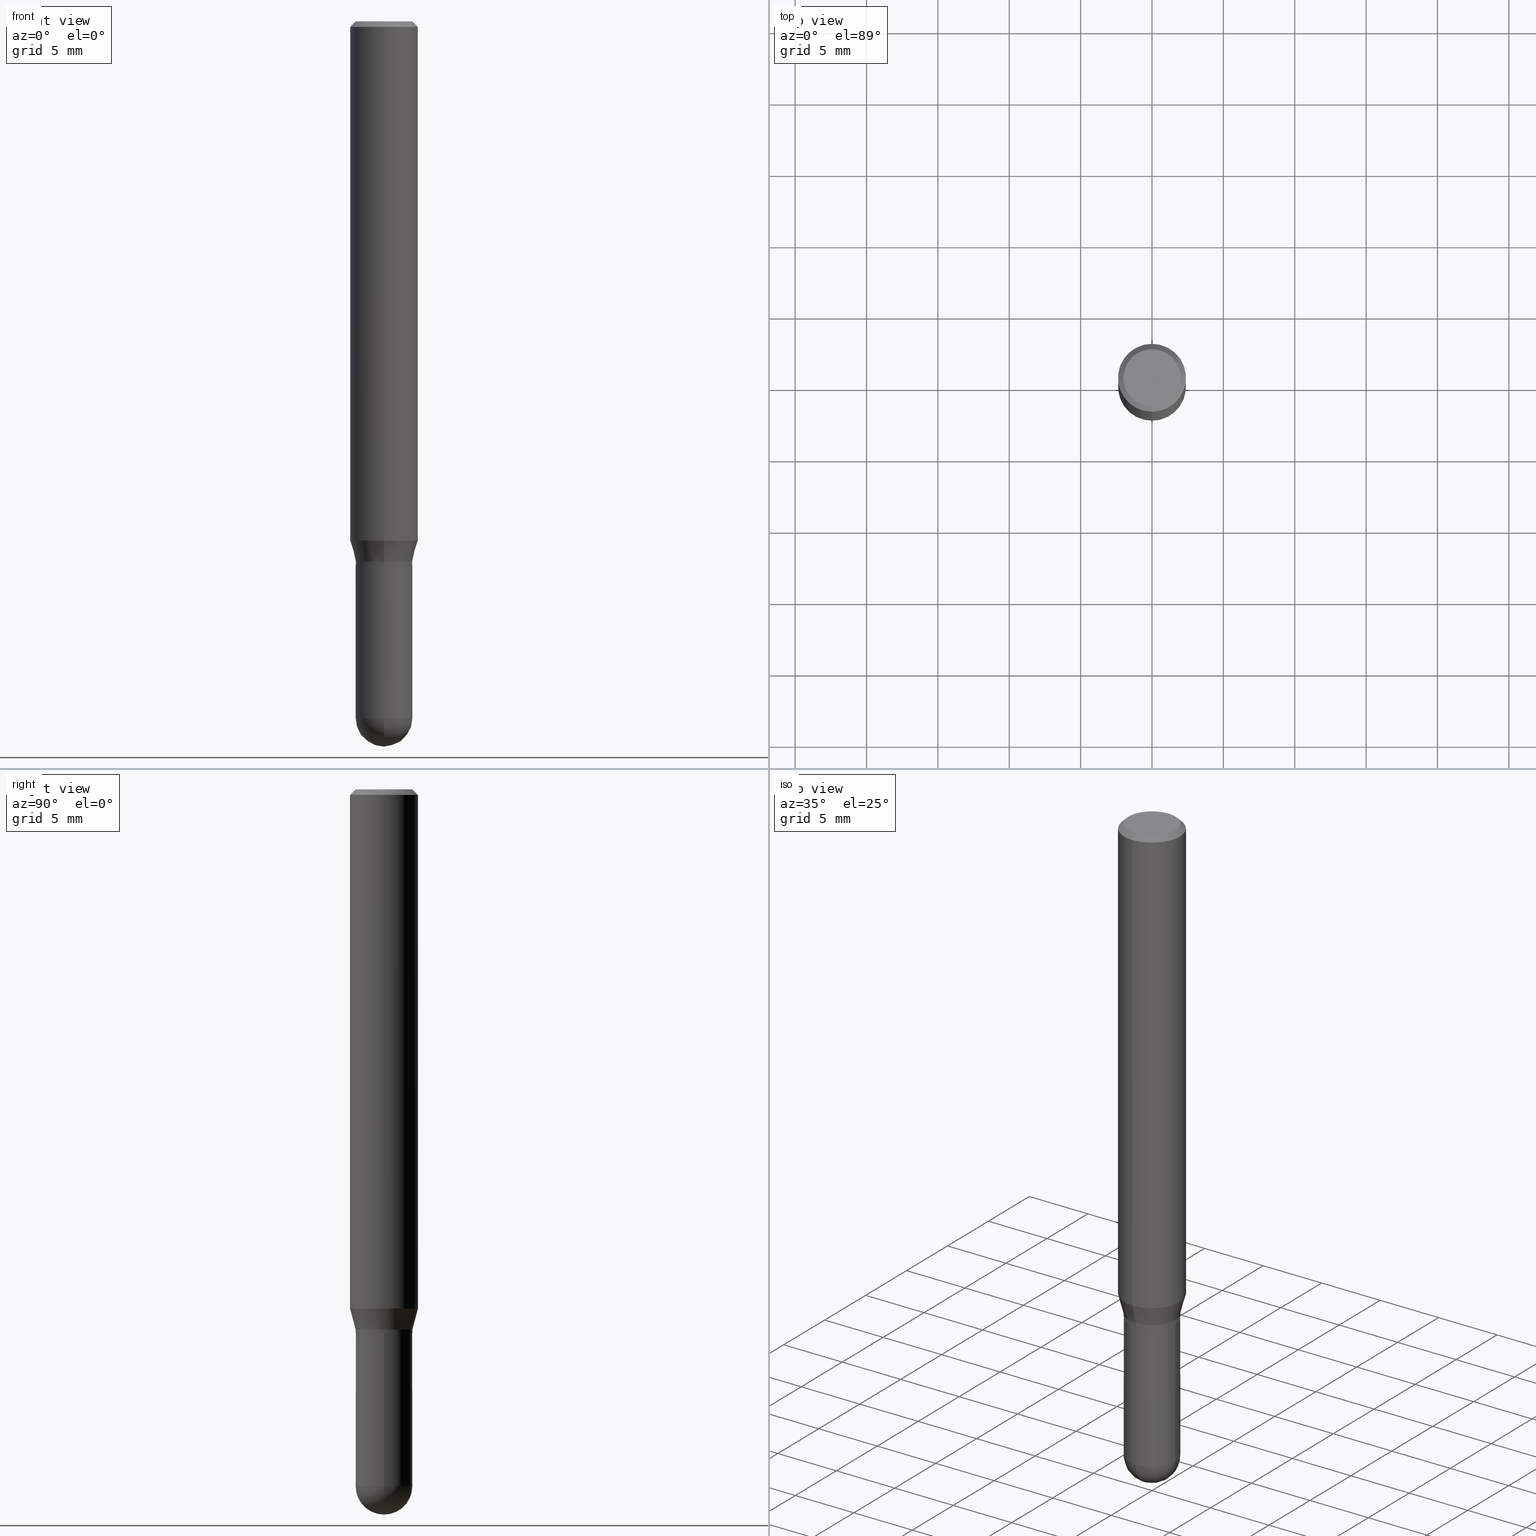
[diagram: canonical four-view strip — front | top / right | iso, engineering-drawing reading convention]
A machine part, canonical four-view strip (front | top / right | iso — engineering-drawing reading convention). The complete STEP part file that produces these views, byte-faithful:
ISO-10303-21;
HEADER;
FILE_DESCRIPTION (( 'STEP AP203' ),
    '1' );
FILE_NAME ('39320.STEP',
    '2024-03-08T12:47:58',
    ( '' ),
    ( '' ),
    'SwSTEP 2.0',
    'SolidWorks 2023',
    '' );
FILE_SCHEMA (( 'CONFIG_CONTROL_DESIGN' ));
ENDSEC;

DATA;
#1 = FACE_OUTER_BOUND ( 'NONE', #182, .T. ) ;
#2 = EDGE_LOOP ( 'NONE', ( #466, #29, #396, #294 ) ) ;
#3 = CARTESIAN_POINT ( 'NONE',  ( 5.453693851273441764E-16, 0.07809999999999325815, -1.921900000000000386 ) ) ;
#4 = AXIS2_PLACEMENT_3D ( 'NONE', #206, #216, #379 ) ;
#5 = CIRCLE ( 'NONE', #193, 0.09375000000000001388 ) ;
#6 = DIRECTION ( 'NONE',  ( 1.000000000000000000, -6.982962677686266711E-15, 0.000000000000000000 ) ) ;
#7 = LINE ( 'NONE', #451, #250 ) ;
#8 = APPROVAL_PERSON_ORGANIZATION ( #22, #50, #143 ) ;
#9 = FACE_OUTER_BOUND ( 'NONE', #302, .T. ) ;
#10 = ADVANCED_FACE ( 'NONE', ( #37 ), #78, .T. ) ;
#11 = ORIENTED_EDGE ( 'NONE', *, *, #63, .T. ) ;
#12 = DIRECTION ( 'NONE',  ( -2.445771070544258513E-29, 3.491048479077063976E-15, 1.000000000000000000 ) ) ;
#13 = MECHANICAL_CONTEXT ( 'NONE', #267, 'mechanical' ) ;
#14 = ORIENTED_EDGE ( 'NONE', *, *, #417, .F. ) ;
#15 = CARTESIAN_POINT ( 'NONE',  ( 4.693267649888723399E-29, -6.719842476623982487E-15, -1.921900000000000164 ) ) ;
#16 = AXIS2_PLACEMENT_3D ( 'NONE', #463, #292, #92 ) ;
#17 = CARTESIAN_POINT ( 'NONE',  ( 0.07810000000000000275, -6.519119381820976762E-15, -1.921900000000000164 ) ) ;
#18 = CARTESIAN_POINT ( 'NONE',  ( 3.668656605816388329E-29, -5.236572718615595766E-15, -1.500000000000000222 ) ) ;
#19 = ORIENTED_EDGE ( 'NONE', *, *, #115, .F. ) ;
#20 = CIRCLE ( 'NONE', #318, 0.09375000000000001388 ) ;
#21 = CARTESIAN_POINT ( 'NONE',  ( 0.000000000000000000, 0.000000000000000000, 0.000000000000000000 ) ) ;
#22 = PERSON_AND_ORGANIZATION ( #273, #428 ) ;
#23 = ORIENTED_EDGE ( 'NONE', *, *, #38, .F. ) ;
#24 = CARTESIAN_POINT ( 'NONE',  ( 6.022805309504406221E-16, 0.07875000000000001443, -4.502505457365932201E-16 ) ) ;
#25 = ADVANCED_FACE ( 'NONE', ( #186 ), #382, .T. ) ;
#26 = CARTESIAN_POINT ( 'NONE',  ( -5.418779037884175500E-16, -0.07760000000000523424, -1.499999999999999778 ) ) ;
#27 = CC_DESIGN_PERSON_AND_ORGANIZATION_ASSIGNMENT ( #342, #36, ( #245 ) ) ;
#28 = CARTESIAN_POINT ( 'NONE',  ( 5.549338766286719885E-16, 0.07809999999999443776, -1.490000000000000213 ) ) ;
#29 = ORIENTED_EDGE ( 'NONE', *, *, #401, .T. ) ;
#30 = FACE_OUTER_BOUND ( 'NONE', #195, .T. ) ;
#31 = MANIFOLD_SOLID_BREP ( 'Body-Move/Copy2[1]', #442 ) ;
#32 = ORIENTED_EDGE ( 'NONE', *, *, #124, .F. ) ;
#33 = AXIS2_PLACEMENT_3D ( 'NONE', #21, #98, #491 ) ;
#34 = APPROVAL_DATE_TIME ( #430, #445 ) ;
#35 = DIRECTION ( 'NONE',  ( 2.445771070544258513E-29, -3.491048479077063976E-15, -1.000000000000000000 ) ) ;
#36 = PERSON_AND_ORGANIZATION_ROLE ( 'design_owner' ) ;
#37 = FACE_OUTER_BOUND ( 'NONE', #458, .T. ) ;
#38 = EDGE_CURVE ( 'NONE', #353, #299, #208, .T. ) ;
#39 = ORIENTED_EDGE ( 'NONE', *, *, #38, .T. ) ;
#40 = SPHERICAL_SURFACE ( 'NONE', #82, 0.07809999999999996112 ) ;
#41 = FACE_OUTER_BOUND ( 'NONE', #332, .T. ) ;
#42 = DIRECTION ( 'NONE',  ( 1.000000000000000000, -6.982962677686266711E-15, 0.000000000000000000 ) ) ;
#43 = CC_DESIGN_PERSON_AND_ORGANIZATION_ASSIGNMENT ( #187, #465, ( #191 ) ) ;
#44 = AXIS2_PLACEMENT_3D ( 'NONE', #260, #384, #53 ) ;
#45 = VECTOR ( 'NONE', #329, 39.37007874015748143 ) ;
#46 = CARTESIAN_POINT ( 'NONE',  ( 4.693267649888723399E-29, -6.719842476623982487E-15, -1.921900000000000164 ) ) ;
#47 = DIRECTION ( 'NONE',  ( -6.982962677686265922E-15, -1.000000000000000000, 3.497884755011876582E-15 ) ) ;
#48 = VERTEX_POINT ( 'NONE', #504 ) ;
#49 = DIRECTION ( 'NONE',  ( -6.982962677686265922E-15, -1.000000000000000000, 3.497884755011876582E-15 ) ) ;
#50 = APPROVAL ( #383, 'UNSPECIFIED' ) ;
#51 = EDGE_LOOP ( 'NONE', ( #351, #91, #467, #127 ) ) ;
#52 = DIRECTION ( 'NONE',  ( 1.000000000000000000, -6.982962677686266711E-15, 0.000000000000000000 ) ) ;
#53 = DIRECTION ( 'NONE',  ( -7.105427357601000281E-15, -1.000000000000000000, 0.000000000000000000 ) ) ;
#54 = ORIENTED_EDGE ( 'NONE', *, *, #397, .F. ) ;
#55 = DIRECTION ( 'NONE',  ( -1.000000000000000000, 6.982962677686265922E-15, -4.883557194083112901E-29 ) ) ;
#56 = CIRCLE ( 'NONE', #4, 0.07810000000000000275 ) ;
#57 = DIRECTION ( 'NONE',  ( -6.982962677686265133E-15, -1.000000000000000000, 3.497884755011864354E-15 ) ) ;
#58 = AXIS2_PLACEMENT_3D ( 'NONE', #205, #120, #387 ) ;
#59 = ORIENTED_EDGE ( 'NONE', *, *, #197, .T. ) ;
#60 = DIRECTION ( 'NONE',  ( 6.982962677686265922E-15, 1.000000000000000000, -3.497884755011862382E-15 ) ) ;
#61 = ORIENTED_EDGE ( 'NONE', *, *, #293, .T. ) ;
#62 = SPHERICAL_SURFACE ( 'NONE', #247, 0.07809999999999996112 ) ;
#63 = EDGE_CURVE ( 'NONE', #225, #168, #336, .T. ) ;
#64 = DATE_AND_TIME ( #432, #308 ) ;
#65 = EDGE_LOOP ( 'NONE', ( #32, #61, #416, #268 ) ) ;
#66 = DIRECTION ( 'NONE',  ( 1.000000000000000000, -6.982962677686266711E-15, 4.876176775795935232E-29 ) ) ;
#67 = COORDINATED_UNIVERSAL_TIME_OFFSET ( 5, 0, .BEHIND. ) ;
#68 = CIRCLE ( 'NONE', #364, 0.09375000000000001388 ) ;
#69 = EDGE_CURVE ( 'NONE', #70, #376, #510, .T. ) ;
#70 = VERTEX_POINT ( 'NONE', #473 ) ;
#71 = CIRCLE ( 'NONE', #366, 0.07810000000000000275 ) ;
#72 = VECTOR ( 'NONE', #410, 39.37007874015748143 ) ;
#73 = DIRECTION ( 'NONE',  ( -2.445771070544258513E-29, 3.491048479077063976E-15, 1.000000000000000000 ) ) ;
#74 = EDGE_CURVE ( 'NONE', #101, #299, #316, .T. ) ;
#75 = DIRECTION ( 'NONE',  ( -2.445771070544258513E-29, 3.491048479077063976E-15, 1.000000000000000000 ) ) ;
#76 = DIRECTION ( 'NONE',  ( -2.445771070544258513E-29, 3.491048479077063976E-15, 1.000000000000000000 ) ) ;
#77 = ORIENTED_EDGE ( 'NONE', *, *, #145, .F. ) ;
#78 = CONICAL_SURFACE ( 'NONE', #373, 0.09375000000000001388, 0.7853981633974480570 ) ;
#79 = DIRECTION ( 'NONE',  ( 6.982962677686265922E-15, 1.000000000000000000, -3.497884755011862382E-15 ) ) ;
#80 = FACE_OUTER_BOUND ( 'NONE', #362, .T. ) ;
#81 = FACE_OUTER_BOUND ( 'NONE', #381, .T. ) ;
#82 = AXIS2_PLACEMENT_3D ( 'NONE', #46, #511, #79 ) ;
#83 = AXIS2_PLACEMENT_3D ( 'NONE', #255, #212, #375 ) ;
#84 = CARTESIAN_POINT ( 'NONE',  ( 0.000000000000000000, 0.000000000000000000, 0.000000000000000000 ) ) ;
#85 = EDGE_CURVE ( 'NONE', #106, #142, #471, .T. ) ;
#86 = DIRECTION ( 'NONE',  ( -2.445771070544258513E-29, 3.491048479077063581E-15, 1.000000000000000000 ) ) ;
#87 = ADVANCED_FACE ( 'NONE', ( #41 ), #248, .T. ) ;
#88 =( NAMED_UNIT ( * ) PLANE_ANGLE_UNIT ( ) SI_UNIT ( $, .RADIAN. ) );
#89 = CARTESIAN_POINT ( 'NONE',  ( 5.549338766286741579E-16, 0.07809999999999467368, -1.499500000000000499 ) ) ;
#90 = VECTOR ( 'NONE', #223, 39.37007874015748143 ) ;
#91 = ORIENTED_EDGE ( 'NONE', *, *, #304, .T. ) ;
#92 = DIRECTION ( 'NONE',  ( 6.982962677686265922E-15, 1.000000000000000000, -3.483106191921935160E-15 ) ) ;
#93 = VERTEX_POINT ( 'NONE', #26 ) ;
#94 = DIRECTION ( 'NONE',  ( -2.445468806185136597E-29, 3.491481338843145583E-15, 1.000000000000000000 ) ) ;
#95 = EDGE_CURVE ( 'NONE', #168, #225, #348, .T. ) ;
#96 = CARTESIAN_POINT ( 'NONE',  ( 3.668656605816431051E-31, -5.236572718615656977E-17, -0.01500000000000017465 ) ) ;
#97 = ORIENTED_EDGE ( 'NONE', *, *, #323, .F. ) ;
#98 = DIRECTION ( 'NONE',  ( -2.445771070544258513E-29, 3.491048479077063976E-15, 1.000000000000000000 ) ) ;
#99 = CIRCLE ( 'NONE', #429, 0.07810000000000000275 ) ;
#100 = CC_DESIGN_SECURITY_CLASSIFICATION ( #309, ( #191 ) ) ;
#101 = VERTEX_POINT ( 'NONE', #335 ) ;
#102 = FACE_OUTER_BOUND ( 'NONE', #421, .T. ) ;
#103 = DIRECTION ( 'NONE',  ( -2.445468806185136597E-29, 3.491481338843145583E-15, 1.000000000000000000 ) ) ;
#104 = DIRECTION ( 'NONE',  ( -2.445468806185136597E-29, 3.491481338843145583E-15, 1.000000000000000000 ) ) ;
#105 = DATE_TIME_ROLE ( 'creation_date' ) ;
#106 = VERTEX_POINT ( 'NONE', #89 ) ;
#107 = ADVANCED_FACE ( 'NONE', ( #459 ), #135, .T. ) ;
#108 = DATE_TIME_ROLE ( 'classification_date' ) ;
#109 = AXIS2_PLACEMENT_3D ( 'NONE', #198, #326, #116 ) ;
#110 = ORIENTED_EDGE ( 'NONE', *, *, #115, .T. ) ;
#111 = AXIS2_PLACEMENT_3D ( 'NONE', #150, #75, #319 ) ;
#112 = CIRCLE ( 'NONE', #219, 0.07809999999999991949 ) ;
#113 = APPROVAL_ROLE ( '' ) ;
#114 = ORIENTED_EDGE ( 'NONE', *, *, #426, .T. ) ;
#115 = EDGE_CURVE ( 'NONE', #93, #210, #358, .T. ) ;
#116 = DIRECTION ( 'NONE',  ( -1.000000000000000000, 6.982962677686265922E-15, -4.876176775795935793E-29 ) ) ;
#117 = CARTESIAN_POINT ( 'NONE',  ( -0.07810000000000000275, 5.549338766286382647E-16, -3.841688305489081275E-30 ) ) ;
#118 = APPROVAL ( #420, 'UNSPECIFIED' ) ;
#119 = LINE ( 'NONE', #157, #289 ) ;
#120 = DIRECTION ( 'NONE',  ( -2.445771070544258513E-29, 3.491048479077063976E-15, 1.000000000000000000 ) ) ;
#121 = CARTESIAN_POINT ( 'NONE',  ( 3.644198895110945173E-29, -5.201662233824825028E-15, -1.489999999999999991 ) ) ;
#122 = AXIS2_PLACEMENT_3D ( 'NONE', #486, #495, #501 ) ;
#123 = PLANE ( 'NONE',  #337 ) ;
#124 = EDGE_CURVE ( 'NONE', #210, #106, #300, .T. ) ;
#125 = DIRECTION ( 'NONE',  ( -6.982962677686265922E-15, -1.000000000000000000, 3.497884755011876582E-15 ) ) ;
#126 = FACE_OUTER_BOUND ( 'NONE', #51, .T. ) ;
#127 = ORIENTED_EDGE ( 'NONE', *, *, #352, .F. ) ;
#128 = DIRECTION ( 'NONE',  ( -4.851104656540962697E-15, -0.7071067811865497932, -0.7071067811865452413 ) ) ;
#129 = LOCAL_TIME ( 7, 47, 58.00000000000000000, #146 ) ;
#130 = APPROVAL_PERSON_ORGANIZATION ( #394, #118, #277 ) ;
#131 = CARTESIAN_POINT ( 'NONE',  ( 3.644198895110945173E-29, -5.201662233824825028E-15, -1.489999999999999991 ) ) ;
#132 = VECTOR ( 'NONE', #361, 39.37007874015748854 ) ;
#133 = VERTEX_POINT ( 'NONE', #341 ) ;
#134 = ADVANCED_FACE ( 'NONE', ( #102 ), #453, .F. ) ;
#135 = CYLINDRICAL_SURFACE ( 'NONE', #33, 0.07809999999999978071 ) ;
#136 = ORIENTED_EDGE ( 'NONE', *, *, #401, .F. ) ;
#137 = CARTESIAN_POINT ( 'NONE',  ( 4.699946498607214373E-29, -6.710277985122641264E-15, -1.921900000000000164 ) ) ;
#138 = ORIENTED_EDGE ( 'NONE', *, *, #189, .T. ) ;
#139 = CARTESIAN_POINT ( 'NONE',  ( 4.699946498607214373E-29, -6.710277985122641264E-15, -1.921900000000000164 ) ) ;
#140 = CIRCLE ( 'NONE', #468, 0.07809999999999964193 ) ;
#141 = APPLICATION_CONTEXT ( 'configuration controlled 3d designs of mechanical parts and assemblies' ) ;
#142 = VERTEX_POINT ( 'NONE', #211 ) ;
#143 = APPROVAL_ROLE ( '' ) ;
#144 = ORIENTED_EDGE ( 'NONE', *, *, #462, .T. ) ;
#145 = EDGE_CURVE ( 'NONE', #48, #385, #391, .T. ) ;
#146 = COORDINATED_UNIVERSAL_TIME_OFFSET ( 5, 0, .BEHIND. ) ;
#147 = DIRECTION ( 'NONE',  ( -6.982962677686264344E-15, -1.000000000000000000, 3.491048479077063976E-15 ) ) ;
#148 = AXIS2_PLACEMENT_3D ( 'NONE', #18, #339, #444 ) ;
#149 = DESIGN_CONTEXT ( 'detailed design', #141, 'design' ) ;
#150 = CARTESIAN_POINT ( 'NONE',  ( 3.501349734392323234E-29, -4.997761978698656219E-15, -1.431593404861545960 ) ) ;
#151 = DIRECTION ( 'NONE',  ( -2.445771070544258513E-29, 3.491048479077063976E-15, 1.000000000000000000 ) ) ;
#152 = CARTESIAN_POINT ( 'NONE',  ( 3.668656605816431051E-31, -5.236572718615656977E-17, -0.01500000000000017465 ) ) ;
#153 = CARTESIAN_POINT ( 'NONE',  ( -5.453693851272600641E-16, -0.07810000000000515141, -1.499500000000000055 ) ) ;
#154 = EDGE_LOOP ( 'NONE', ( #39, #275 ) ) ;
#155 = EDGE_CURVE ( 'NONE', #225, #133, #413, .T. ) ;
#156 = LINE ( 'NONE', #282, #278 ) ;
#157 = CARTESIAN_POINT ( 'NONE',  ( 6.661338147750938256E-16, 0.09375000000000001388, -3.272857949134747847E-16 ) ) ;
#158 = DIRECTION ( 'NONE',  ( 1.000000000000000000, -6.982962677686266711E-15, 4.876176775795935232E-29 ) ) ;
#159 = AXIS2_PLACEMENT_3D ( 'NONE', #84, #472, #242 ) ;
#160 = CARTESIAN_POINT ( 'NONE',  ( 0.000000000000000000, 0.000000000000000000, 0.000000000000000000 ) ) ;
#161 = CC_DESIGN_PERSON_AND_ORGANIZATION_ASSIGNMENT ( #470, #224, ( #183 ) ) ;
#162 = ADVANCED_BREP_SHAPE_REPRESENTATION ( '39320', ( #31, #371, #83 ), #241 ) ;
#163 = CARTESIAN_POINT ( 'NONE',  ( 3.667433720281116648E-29, -5.234827194376057979E-15, -1.499500000000000277 ) ) ;
#164 = ORIENTED_EDGE ( 'NONE', *, *, #145, .T. ) ;
#165 = CARTESIAN_POINT ( 'NONE',  ( 3.668656605816388329E-29, -5.236572718615595766E-15, -1.500000000000000222 ) ) ;
#166 = LINE ( 'NONE', #338, #232 ) ;
#167 = EDGE_CURVE ( 'NONE', #133, #179, #5, .T. ) ;
#168 = VERTEX_POINT ( 'NONE', #24 ) ;
#169 = CARTESIAN_POINT ( 'NONE',  ( -6.546527510330875041E-16, -0.09375000000000001388, 3.272857949134747847E-16 ) ) ;
#170 = AXIS2_PLACEMENT_3D ( 'NONE', #121, #474, #402 ) ;
#171 = CC_DESIGN_APPROVAL ( #118, ( #191 ) ) ;
#172 = AXIS2_PLACEMENT_3D ( 'NONE', #244, #151, #202 ) ;
#173 = ORIENTED_EDGE ( 'NONE', *, *, #69, .F. ) ;
#174 = CARTESIAN_POINT ( 'NONE',  ( 5.513811629498742455E-16, 0.07759999999999475651, -1.500000000000000444 ) ) ;
#175 = PERSON_AND_ORGANIZATION ( #273, #428 ) ;
#176 = ORIENTED_EDGE ( 'NONE', *, *, #155, .T. ) ;
#177 = PERSON_AND_ORGANIZATION ( #273, #428 ) ;
#178 = DIRECTION ( 'NONE',  ( 1.839019923739604654E-15, 0.2588190451025255689, 0.9659258262890669799 ) ) ;
#179 = VERTEX_POINT ( 'NONE', #345 ) ;
#180 = DIRECTION ( 'NONE',  ( -2.445771070544258513E-29, 3.491048479077063976E-15, 1.000000000000000000 ) ) ;
#181 = APPROVAL_STATUS ( 'not_yet_approved' ) ;
#182 = EDGE_LOOP ( 'NONE', ( #136, #427, #138, #305 ) ) ;
#183 = PRODUCT_DEFINITION ( 'UNKNOWN', '', #191, #149 ) ;
#184 = SHAPE_DEFINITION_REPRESENTATION ( #249, #162 ) ;
#185 = UNCERTAINTY_MEASURE_WITH_UNIT (LENGTH_MEASURE( 1.000000000000000082E-05 ), #374, 'distance_accuracy_value', 'NONE');
#186 = FACE_OUTER_BOUND ( 'NONE', #65, .T. ) ;
#187 = PERSON_AND_ORGANIZATION ( #273, #428 ) ;
#188 = ORIENTED_EDGE ( 'NONE', *, *, #360, .F. ) ;
#189 = EDGE_CURVE ( 'NONE', #376, #133, #449, .T. ) ;
#190 = CONICAL_SURFACE ( 'NONE', #457, 0.07809999999999964193, 0.2617993877991509066 ) ;
#191 = PRODUCT_DEFINITION_FORMATION_WITH_SPECIFIED_SOURCE ( 'ANY', '', #245, .NOT_KNOWN. ) ;
#192 = DIRECTION ( 'NONE',  ( 6.982962677686265922E-15, 1.000000000000000000, -3.483106191921935160E-15 ) ) ;
#193 = AXIS2_PLACEMENT_3D ( 'NONE', #269, #180, #295 ) ;
#194 = DIRECTION ( 'NONE',  ( -6.982962677686265922E-15, -1.000000000000000000, 3.491048479077063581E-15 ) ) ;
#195 = EDGE_LOOP ( 'NONE', ( #253, #388, #23, #222, #256 ) ) ;
#196 = DIRECTION ( 'NONE',  ( -2.445771070544258232E-29, 3.491048479077063581E-15, 1.000000000000000000 ) ) ;
#197 = EDGE_CURVE ( 'NONE', #280, #485, #71, .T. ) ;
#198 = CARTESIAN_POINT ( 'NONE',  ( 5.453693851273340198E-16, 0.07809999999999475695, -1.500000000000000222 ) ) ;
#199 = CIRCLE ( 'NONE', #488, 0.07810000000000000275 ) ;
#200 = PRODUCT_RELATED_PRODUCT_CATEGORY ( 'detail', '', ( #245 ) ) ;
#201 = CC_DESIGN_APPROVAL ( #50, ( #183 ) ) ;
#202 = DIRECTION ( 'NONE',  ( -6.982962677686265922E-15, -1.000000000000000000, 3.491048479077063976E-15 ) ) ;
#203 = EDGE_CURVE ( 'NONE', #101, #280, #199, .T. ) ;
#204 = DIRECTION ( 'NONE',  ( -2.445771070544258513E-29, 3.491048479077063976E-15, 1.000000000000000000 ) ) ;
#205 = CARTESIAN_POINT ( 'NONE',  ( 3.668656605816388329E-29, -5.236572718615595766E-15, -1.500000000000000222 ) ) ;
#206 = CARTESIAN_POINT ( 'NONE',  ( 4.699946498607214373E-29, -6.710277985122641264E-15, -1.921900000000000164 ) ) ;
#207 = CC_DESIGN_APPROVAL ( #445, ( #309 ) ) ;
#208 = CIRCLE ( 'NONE', #448, 0.07810000000000000275 ) ;
#209 = FACE_OUTER_BOUND ( 'NONE', #435, .T. ) ;
#210 = VERTEX_POINT ( 'NONE', #254 ) ;
#211 = CARTESIAN_POINT ( 'NONE',  ( 6.105338457019004099E-16, 0.07809999999999443776, -1.490000000000000213 ) ) ;
#212 = DIRECTION ( 'NONE',  ( 0.000000000000000000, 0.000000000000000000, 1.000000000000000000 ) ) ;
#213 = ORIENTED_EDGE ( 'NONE', *, *, #124, .T. ) ;
#214 = DIRECTION ( 'NONE',  ( -2.445771070544258513E-29, 3.491048479077063976E-15, 1.000000000000000000 ) ) ;
#215 = LENGTH_MEASURE_WITH_UNIT ( LENGTH_MEASURE( 0.02539999999999999897 ), #493 );
#216 = DIRECTION ( 'NONE',  ( -2.445468806185136597E-29, 3.491481338843145583E-15, 1.000000000000000000 ) ) ;
#217 = ORIENTED_EDGE ( 'NONE', *, *, #197, .F. ) ;
#218 = EDGE_CURVE ( 'NONE', #314, #142, #140, .T. ) ;
#219 = AXIS2_PLACEMENT_3D ( 'NONE', #439, #246, #363 ) ;
#220 = CLOSED_SHELL ( 'NONE', ( #349, #87, #10, #306, #450, #324, #354, #284, #134, #438, #25, #107 ) ) ;
#221 = COORDINATED_UNIVERSAL_TIME_OFFSET ( 5, 0, .BEHIND. ) ;
#222 = ORIENTED_EDGE ( 'NONE', *, *, #423, .F. ) ;
#223 = DIRECTION ( 'NONE',  ( 5.024295867788147587E-15, 0.7071067811865620056, 0.7071067811865330288 ) ) ;
#224 = PERSON_AND_ORGANIZATION_ROLE ( 'creator' ) ;
#225 = VERTEX_POINT ( 'NONE', #303 ) ;
#226 = DIRECTION ( 'NONE',  ( 1.000000000000000000, -6.982962677686266711E-15, 0.000000000000000000 ) ) ;
#227 = PERSON_AND_ORGANIZATION_ROLE ( 'classification_officer' ) ;
#228 = CARTESIAN_POINT ( 'NONE',  ( 4.288182108997796267E-45, -6.120871985901321353E-31, -1.753304780092744197E-16 ) ) ;
#229 = CC_DESIGN_PERSON_AND_ORGANIZATION_ASSIGNMENT ( #177, #236, ( #191 ) ) ;
#230 = FACE_OUTER_BOUND ( 'NONE', #2, .T. ) ;
#231 = DIRECTION ( 'NONE',  ( -6.982962677686265922E-15, -1.000000000000000000, 3.520422672247761757E-15 ) ) ;
#232 = VECTOR ( 'NONE', #484, 39.37007874015748143 ) ;
#233 = CALENDAR_DATE ( 2024, 8, 3 ) ;
#234 = VECTOR ( 'NONE', #128, 39.37007874015748143 ) ;
#235 = ORIENTED_EDGE ( 'NONE', *, *, #423, .T. ) ;
#236 = PERSON_AND_ORGANIZATION_ROLE ( 'creator' ) ;
#237 = CARTESIAN_POINT ( 'NONE',  ( -0.07810000000000000275, -5.418816120065042244E-15, -1.500000000000000222 ) ) ;
#238 = CARTESIAN_POINT ( 'NONE',  ( 3.668203209277704895E-29, -5.237222008264718177E-15, -1.500000000000000222 ) ) ;
#239 = CARTESIAN_POINT ( 'NONE',  ( 5.549338766286364898E-16, 0.07809999999999978071, -2.726508862159178968E-16 ) ) ;
#240 = ADVANCED_FACE ( 'NONE', ( #418 ), #62, .T. ) ;
#241 =( GEOMETRIC_REPRESENTATION_CONTEXT ( 3 ) GLOBAL_UNCERTAINTY_ASSIGNED_CONTEXT ( ( #185 ) ) GLOBAL_UNIT_ASSIGNED_CONTEXT ( ( #374, #88, #301 ) ) REPRESENTATION_CONTEXT ( 'NONE', 'WORKASPACE' ) );
#242 = DIRECTION ( 'NONE',  ( -6.982962677686265922E-15, -1.000000000000000000, 3.491048479077063976E-15 ) ) ;
#243 = DIRECTION ( 'NONE',  ( -2.445468806185136877E-29, 3.491481338843145188E-15, 1.000000000000000000 ) ) ;
#244 = CARTESIAN_POINT ( 'NONE',  ( 0.000000000000000000, 0.000000000000000000, 0.000000000000000000 ) ) ;
#245 = PRODUCT ( '39320', '39320', '', ( #13 ) ) ;
#246 = DIRECTION ( 'NONE',  ( -2.445771070544258513E-29, 3.491048479077063976E-15, 1.000000000000000000 ) ) ;
#247 = AXIS2_PLACEMENT_3D ( 'NONE', #15, #55, #60 ) ;
#248 = CONICAL_SURFACE ( 'NONE', #58, 0.07760000000000000231, 0.7853981633974653764 ) ;
#249 = PRODUCT_DEFINITION_SHAPE ( 'NONE', 'NONE',  #183 ) ;
#250 = VECTOR ( 'NONE', #372, 39.37007874015748143 ) ;
#251 = FACE_OUTER_BOUND ( 'NONE', #154, .T. ) ;
#252 = DIRECTION ( 'NONE',  ( -2.445771070544258232E-29, 3.491048479077063581E-15, 1.000000000000000000 ) ) ;
#253 = ORIENTED_EDGE ( 'NONE', *, *, #360, .T. ) ;
#254 = CARTESIAN_POINT ( 'NONE',  ( 5.531575197892741031E-16, 0.07759999999999475651, -1.500000000000000444 ) ) ;
#255 = CARTESIAN_POINT ( 'NONE',  ( 0.000000000000000000, 0.000000000000000000, 0.000000000000000000 ) ) ;
#256 = ORIENTED_EDGE ( 'NONE', *, *, #287, .T. ) ;
#257 = DIRECTION ( 'NONE',  ( 6.982962677686265922E-15, 1.000000000000000000, -3.491048479077063581E-15 ) ) ;
#258 = DIRECTION ( 'NONE',  ( -6.982962677686265922E-15, -1.000000000000000000, 3.491048479077063581E-15 ) ) ;
#259 = ADVANCED_FACE ( 'NONE', ( #30 ), #307, .T. ) ;
#260 = CARTESIAN_POINT ( 'NONE',  ( 4.693267649888723399E-29, -6.719842476623982487E-15, -1.921900000000000164 ) ) ;
#261 = DIRECTION ( 'NONE',  ( -6.982962677686264344E-15, -1.000000000000000000, 3.491048479077063976E-15 ) ) ;
#262 = CYLINDRICAL_SURFACE ( 'NONE', #446, 0.07810000000000000275 ) ;
#263 = EDGE_LOOP ( 'NONE', ( #144, #431, #489, #97 ) ) ;
#264 = DIRECTION ( 'NONE',  ( -2.445771070544258513E-29, 3.491048479077063976E-15, 1.000000000000000000 ) ) ;
#265 = AXIS2_PLACEMENT_3D ( 'NONE', #377, #104, #66 ) ;
#266 = LOCAL_TIME ( 7, 47, 58.00000000000000000, #392 ) ;
#267 = APPLICATION_CONTEXT ( 'configuration controlled 3d designs of mechanical parts and assemblies' ) ;
#268 = ORIENTED_EDGE ( 'NONE', *, *, #369, .F. ) ;
#269 = CARTESIAN_POINT ( 'NONE',  ( 3.668656605816431051E-31, -5.236572718615656977E-17, -0.01500000000000017465 ) ) ;
#270 = CALENDAR_DATE ( 2024, 8, 3 ) ;
#271 = CARTESIAN_POINT ( 'NONE',  ( 4.288182108997796267E-45, -6.120871985901321353E-31, -1.753304780092744197E-16 ) ) ;
#272 = CARTESIAN_POINT ( 'NONE',  ( -5.549338766285910317E-16, -0.07810000000000670572, -1.921899999999999720 ) ) ;
#273 = PERSON ( 'UNSPECIFIED', 'UNSPECIFIED', 'UNSPECIFIED', ('UNSPECIFIED'), ('UNSPECIFIED'), ('UNSPECIFIED') ) ;
#274 = DATE_AND_TIME ( #350, #266 ) ;
#275 = ORIENTED_EDGE ( 'NONE', *, *, #397, .T. ) ;
#276 = CIRCLE ( 'NONE', #148, 0.07760000000000000231 ) ;
#277 = APPROVAL_ROLE ( '' ) ;
#278 = VECTOR ( 'NONE', #196, 39.37007874015748143 ) ;
#279 = ORIENTED_EDGE ( 'NONE', *, *, #167, .T. ) ;
#280 = VERTEX_POINT ( 'NONE', #272 ) ;
#281 = ORIENTED_EDGE ( 'NONE', *, *, #203, .T. ) ;
#282 = CARTESIAN_POINT ( 'NONE',  ( -5.453693851272958587E-16, -0.07809999999999978071, 2.726508862159178968E-16 ) ) ;
#283 = DIMENSIONAL_EXPONENTS ( 1.000000000000000000, 0.000000000000000000, 0.000000000000000000, 0.000000000000000000, 0.000000000000000000, 0.000000000000000000, 0.000000000000000000 ) ;
#284 = ADVANCED_FACE ( 'NONE', ( #311 ), #490, .T. ) ;
#285 = EDGE_CURVE ( 'NONE', #48, #280, #404, .T. ) ;
#286 = CARTESIAN_POINT ( 'NONE',  ( 0.000000000000000000, 0.000000000000000000, 0.000000000000000000 ) ) ;
#287 = EDGE_CURVE ( 'NONE', #485, #385, #56, .T. ) ;
#288 = LINE ( 'NONE', #365, #132 ) ;
#289 = VECTOR ( 'NONE', #252, 39.37007874015748143 ) ;
#290 = VECTOR ( 'NONE', #243, 39.37007874015748143 ) ;
#291 = LINE ( 'NONE', #480, #45 ) ;
#292 = DIRECTION ( 'NONE',  ( 2.445771070544258513E-29, -3.491048479077063976E-15, -1.000000000000000000 ) ) ;
#293 = EDGE_CURVE ( 'NONE', #210, #93, #276, .T. ) ;
#294 = ORIENTED_EDGE ( 'NONE', *, *, #189, .F. ) ;
#295 = DIRECTION ( 'NONE',  ( -6.982962677686265922E-15, -1.000000000000000000, 3.483106191921935160E-15 ) ) ;
#296 = VECTOR ( 'NONE', #399, 39.37007874015748143 ) ;
#297 = CC_DESIGN_DATE_AND_TIME_ASSIGNMENT ( #315, #105, ( #183 ) ) ;
#298 = DIRECTION ( 'NONE',  ( -2.445771070544258513E-29, 3.491048479077063976E-15, 1.000000000000000000 ) ) ;
#299 = VERTEX_POINT ( 'NONE', #237 ) ;
#300 = LINE ( 'NONE', #174, #90 ) ;
#301 =( NAMED_UNIT ( * ) SI_UNIT ( $, .STERADIAN. ) SOLID_ANGLE_UNIT ( ) );
#302 = EDGE_LOOP ( 'NONE', ( #395, #281, #59, #235, #54 ) ) ;
#303 = CARTESIAN_POINT ( 'NONE',  ( -5.917179523077944868E-16, -0.07875000000000001443, 9.958958971804440537E-17 ) ) ;
#304 = EDGE_CURVE ( 'NONE', #142, #70, #355, .T. ) ;
#305 = ORIENTED_EDGE ( 'NONE', *, *, #436, .F. ) ;
#306 = ADVANCED_FACE ( 'NONE', ( #230 ), #503, .T. ) ;
#307 = CYLINDRICAL_SURFACE ( 'NONE', #265, 0.07810000000000000275 ) ;
#308 = LOCAL_TIME ( 7, 47, 58.00000000000000000, #502 ) ;
#309 = SECURITY_CLASSIFICATION ( '', '', #507 ) ;
#310 = EDGE_LOOP ( 'NONE', ( #344, #512, #406, #412 ) ) ;
#311 = FACE_OUTER_BOUND ( 'NONE', #447, .T. ) ;
#312 = DATE_AND_TIME ( #270, #500 ) ;
#313 = ADVANCED_FACE ( 'NONE', ( #251 ), #403, .F. ) ;
#314 = VERTEX_POINT ( 'NONE', #398 ) ;
#315 = DATE_AND_TIME ( #498, #129 ) ;
#316 = LINE ( 'NONE', #117, #290 ) ;
#317 = VECTOR ( 'NONE', #178, 39.37007874015748854 ) ;
#318 = AXIS2_PLACEMENT_3D ( 'NONE', #330, #482, #411 ) ;
#319 = DIRECTION ( 'NONE',  ( -6.982962677686265922E-15, -1.000000000000000000, 2.913971193241880372E-15 ) ) ;
#320 = ORIENTED_EDGE ( 'NONE', *, *, #285, .T. ) ;
#321 = CYLINDRICAL_SURFACE ( 'NONE', #172, 0.09375000000000001388 ) ;
#322 = EDGE_LOOP ( 'NONE', ( #409, #164, #494, #217 ) ) ;
#323 = EDGE_CURVE ( 'NONE', #346, #314, #156, .T. ) ;
#324 = ADVANCED_FACE ( 'NONE', ( #80 ), #487, .T. ) ;
#325 = APPROVAL_PERSON_ORGANIZATION ( #175, #445, #113 ) ;
#326 = DIRECTION ( 'NONE',  ( 2.438088387897960049E-29, -3.491481338843145188E-15, -1.000000000000000000 ) ) ;
#327 = AXIS2_PLACEMENT_3D ( 'NONE', #165, #264, #347 ) ;
#328 = DIRECTION ( 'NONE',  ( -2.445468806185136597E-29, 3.491481338843145583E-15, 1.000000000000000000 ) ) ;
#329 = DIRECTION ( 'NONE',  ( 4.937700262164546464E-15, 0.7071067811865449082, -0.7071067811865501263 ) ) ;
#330 = CARTESIAN_POINT ( 'NONE',  ( 3.501349734392323234E-29, -4.997761978698656219E-15, -1.431593404861545960 ) ) ;
#331 = APPLICATION_PROTOCOL_DEFINITION ( 'international standard', 'config_control_design', 1994, #267 ) ;
#332 = EDGE_LOOP ( 'NONE', ( #110, #213, #455, #393 ) ) ;
#333 = DIRECTION ( 'NONE',  ( 2.445771070544258513E-29, -3.491048479077063581E-15, -1.000000000000000000 ) ) ;
#334 = ORIENTED_EDGE ( 'NONE', *, *, #63, .F. ) ;
#335 = CARTESIAN_POINT ( 'NONE',  ( -0.07810000000000000275, -5.418816120065042244E-15, -1.921900000000000164 ) ) ;
#336 = CIRCLE ( 'NONE', #481, 0.07875000000000001443 ) ;
#337 = AXIS2_PLACEMENT_3D ( 'NONE', #443, #86, #258 ) ;
#338 = CARTESIAN_POINT ( 'NONE',  ( 0.07810000000000000275, -5.453693851272974364E-16, 3.808294061896625703E-30 ) ) ;
#339 = DIRECTION ( 'NONE',  ( -2.445771070544258513E-29, 3.491048479077063976E-15, 1.000000000000000000 ) ) ;
#340 = ORIENTED_EDGE ( 'NONE', *, *, #95, .T. ) ;
#341 = CARTESIAN_POINT ( 'NONE',  ( -6.546527510330871097E-16, -0.09375000000000005551, -0.01499999999999984852 ) ) ;
#342 = PERSON_AND_ORGANIZATION ( #273, #428 ) ;
#343 = ADVANCED_FACE ( 'NONE', ( #81 ), #40, .T. ) ;
#344 = ORIENTED_EDGE ( 'NONE', *, *, #85, .F. ) ;
#345 = CARTESIAN_POINT ( 'NONE',  ( 6.661338147751291272E-16, 0.09374999999999995837, -0.01500000000000050078 ) ) ;
#346 = VERTEX_POINT ( 'NONE', #153 ) ;
#347 = DIRECTION ( 'NONE',  ( -6.982962677686265922E-15, -1.000000000000000000, 3.520422672247761757E-15 ) ) ;
#348 = CIRCLE ( 'NONE', #407, 0.07875000000000001443 ) ;
#349 = ADVANCED_FACE ( 'NONE', ( #478 ), #434, .T. ) ;
#350 = CALENDAR_DATE ( 2024, 8, 3 ) ;
#351 = ORIENTED_EDGE ( 'NONE', *, *, #218, .T. ) ;
#352 = EDGE_CURVE ( 'NONE', #314, #376, #288, .T. ) ;
#353 = VERTEX_POINT ( 'NONE', #437 ) ;
#354 = ADVANCED_FACE ( 'NONE', ( #1 ), #321, .T. ) ;
#355 = LINE ( 'NONE', #28, #317 ) ;
#356 = ORIENTED_EDGE ( 'NONE', *, *, #155, .F. ) ;
#357 = AXIS2_PLACEMENT_3D ( 'NONE', #131, #298, #125 ) ;
#358 = CIRCLE ( 'NONE', #327, 0.07760000000000000231 ) ;
#359 = DIRECTION ( 'NONE',  ( -2.445771070544258513E-29, 3.491048479077063976E-15, 1.000000000000000000 ) ) ;
#360 = EDGE_CURVE ( 'NONE', #385, #101, #99, .T. ) ;
#361 = DIRECTION ( 'NONE',  ( -1.807323732225334478E-15, -0.2588190451025187966, 0.9659258262890687563 ) ) ;
#362 = EDGE_LOOP ( 'NONE', ( #508, #114, #452, #173 ) ) ;
#363 = DIRECTION ( 'NONE',  ( -6.982962677686265133E-15, -1.000000000000000000, 3.497884755011864354E-15 ) ) ;
#364 = AXIS2_PLACEMENT_3D ( 'NONE', #96, #370, #378 ) ;
#365 = CARTESIAN_POINT ( 'NONE',  ( -5.453693851272583878E-16, -0.07810000000000484610, -1.489999999999999769 ) ) ;
#366 = AXIS2_PLACEMENT_3D ( 'NONE', #139, #94, #52 ) ;
#367 = AXIS2_PLACEMENT_3D ( 'NONE', #386, #333, #257 ) ;
#368 = CARTESIAN_POINT ( 'NONE',  ( 3.668203209277704895E-29, -5.237222008264718177E-15, -1.500000000000000222 ) ) ;
#369 = EDGE_CURVE ( 'NONE', #106, #346, #112, .T. ) ;
#370 = DIRECTION ( 'NONE',  ( -2.445771070544258513E-29, 3.491048479077063976E-15, 1.000000000000000000 ) ) ;
#371 = MANIFOLD_SOLID_BREP ( 'Body-Move/Copy2[2]', #220 ) ;
#372 = DIRECTION ( 'NONE',  ( -4.937700262164631661E-15, -0.7071067811865571207, 0.7071067811865379138 ) ) ;
#373 = AXIS2_PLACEMENT_3D ( 'NONE', #152, #35, #192 ) ;
#374 =( CONVERSION_BASED_UNIT ( 'INCH', #215 ) LENGTH_UNIT ( ) NAMED_UNIT ( #283 ) );
#375 = DIRECTION ( 'NONE',  ( 1.000000000000000000, 0.000000000000000000, 0.000000000000000000 ) ) ;
#376 = VERTEX_POINT ( 'NONE', #441 ) ;
#377 = CARTESIAN_POINT ( 'NONE',  ( 0.000000000000000000, 0.000000000000000000, 0.000000000000000000 ) ) ;
#378 = DIRECTION ( 'NONE',  ( -6.982962677686265922E-15, -1.000000000000000000, 3.483106191921935160E-15 ) ) ;
#379 = DIRECTION ( 'NONE',  ( 1.000000000000000000, -6.982962677686266711E-15, 0.000000000000000000 ) ) ;
#380 = AXIS2_PLACEMENT_3D ( 'NONE', #286, #76, #194 ) ;
#381 = EDGE_LOOP ( 'NONE', ( #77, #320, #461, #188 ) ) ;
#382 = CONICAL_SURFACE ( 'NONE', #419, 0.07760000000000000231, 0.7853981633974653764 ) ;
#383 = APPROVAL_STATUS ( 'not_yet_approved' ) ;
#384 = DIRECTION ( 'NONE',  ( -1.000000000000000000, 7.105427357601001070E-15, -4.926315508542082329E-29 ) ) ;
#385 = VERTEX_POINT ( 'NONE', #3 ) ;
#386 = CARTESIAN_POINT ( 'NONE',  ( 5.499083108677934443E-16, 0.07875000000000001443, -3.625853067319560965E-16 ) ) ;
#387 = DIRECTION ( 'NONE',  ( -6.982962677686265922E-15, -1.000000000000000000, 3.520422672247761757E-15 ) ) ;
#388 = ORIENTED_EDGE ( 'NONE', *, *, #74, .T. ) ;
#389 = APPROVAL_DATE_TIME ( #64, #50 ) ;
#390 = ORIENTED_EDGE ( 'NONE', *, *, #417, .T. ) ;
#391 = CIRCLE ( 'NONE', #122, 0.07809999999999996112 ) ;
#392 = COORDINATED_UNIVERSAL_TIME_OFFSET ( 5, 0, .BEHIND. ) ;
#393 = ORIENTED_EDGE ( 'NONE', *, *, #483, .F. ) ;
#394 = PERSON_AND_ORGANIZATION ( #273, #428 ) ;
#395 = ORIENTED_EDGE ( 'NONE', *, *, #74, .F. ) ;
#396 = ORIENTED_EDGE ( 'NONE', *, *, #167, .F. ) ;
#397 = EDGE_CURVE ( 'NONE', #299, #353, #440, .T. ) ;
#398 = CARTESIAN_POINT ( 'NONE',  ( -5.453693851272583878E-16, -0.07810000000000484610, -1.489999999999999769 ) ) ;
#399 = DIRECTION ( 'NONE',  ( -2.445771070544258232E-29, 3.491048479077063581E-15, 1.000000000000000000 ) ) ;
#400 = CARTESIAN_POINT ( 'NONE',  ( 4.699946498607214373E-29, -6.710277985122641264E-15, -1.921900000000000164 ) ) ;
#401 = EDGE_CURVE ( 'NONE', #70, #179, #119, .T. ) ;
#402 = DIRECTION ( 'NONE',  ( -6.982962677686265922E-15, -1.000000000000000000, 3.497884755011876582E-15 ) ) ;
#403 = PLANE ( 'NONE',  #109 ) ;
#404 = CIRCLE ( 'NONE', #44, 0.07809999999999996112 ) ;
#405 = DIRECTION ( 'NONE',  ( -2.445771070544258513E-29, 3.491048479077063976E-15, 1.000000000000000000 ) ) ;
#406 = ORIENTED_EDGE ( 'NONE', *, *, #323, .T. ) ;
#407 = AXIS2_PLACEMENT_3D ( 'NONE', #228, #12, #261 ) ;
#408 = CARTESIAN_POINT ( 'NONE',  ( 3.644198895110945173E-29, -5.201662233824825028E-15, -1.489999999999999991 ) ) ;
#409 = ORIENTED_EDGE ( 'NONE', *, *, #285, .F. ) ;
#410 = DIRECTION ( 'NONE',  ( -2.445771070544258232E-29, 3.491048479077063581E-15, 1.000000000000000000 ) ) ;
#411 = DIRECTION ( 'NONE',  ( -6.982962677686265922E-15, -1.000000000000000000, 2.913971193241880372E-15 ) ) ;
#412 = ORIENTED_EDGE ( 'NONE', *, *, #426, .F. ) ;
#413 = LINE ( 'NONE', #456, #234 ) ;
#414 = DIRECTION ( 'NONE',  ( -2.445468806185136597E-29, 3.491481338843145583E-15, 1.000000000000000000 ) ) ;
#415 = CIRCLE ( 'NONE', #479, 0.07809999999999991949 ) ;
#416 = ORIENTED_EDGE ( 'NONE', *, *, #483, .T. ) ;
#417 = EDGE_CURVE ( 'NONE', #168, #179, #291, .T. ) ;
#418 = FACE_OUTER_BOUND ( 'NONE', #322, .T. ) ;
#419 = AXIS2_PLACEMENT_3D ( 'NONE', #424, #359, #231 ) ;
#420 = APPROVAL_STATUS ( 'not_yet_approved' ) ;
#421 = EDGE_LOOP ( 'NONE', ( #340, #11 ) ) ;
#422 = DIRECTION ( 'NONE',  ( -2.445468806185136597E-29, 3.491481338843145583E-15, 1.000000000000000000 ) ) ;
#423 = EDGE_CURVE ( 'NONE', #485, #353, #166, .T. ) ;
#424 = CARTESIAN_POINT ( 'NONE',  ( 3.668656605816388329E-29, -5.236572718615595766E-15, -1.500000000000000222 ) ) ;
#425 = APPLICATION_PROTOCOL_DEFINITION ( 'international standard', 'config_control_design', 1994, #141 ) ;
#426 = EDGE_CURVE ( 'NONE', #142, #314, #469, .T. ) ;
#427 = ORIENTED_EDGE ( 'NONE', *, *, #69, .T. ) ;
#428 = ORGANIZATION ( 'UNSPECIFIED', 'UNSPECIFIED', '' ) ;
#429 = AXIS2_PLACEMENT_3D ( 'NONE', #400, #328, #42 ) ;
#430 = DATE_AND_TIME ( #233, #475 ) ;
#431 = ORIENTED_EDGE ( 'NONE', *, *, #85, .T. ) ;
#432 = CALENDAR_DATE ( 2024, 8, 3 ) ;
#433 = ORIENTED_EDGE ( 'NONE', *, *, #293, .F. ) ;
#434 = CYLINDRICAL_SURFACE ( 'NONE', #380, 0.07809999999999978071 ) ;
#435 = EDGE_LOOP ( 'NONE', ( #19, #433 ) ) ;
#436 = EDGE_CURVE ( 'NONE', #179, #133, #68, .T. ) ;
#437 = CARTESIAN_POINT ( 'NONE',  ( 0.07810000000000000275, -5.782591393392015613E-15, -1.500000000000000222 ) ) ;
#438 = ADVANCED_FACE ( 'NONE', ( #209 ), #123, .F. ) ;
#439 = CARTESIAN_POINT ( 'NONE',  ( 3.667433720281116648E-29, -5.234827194376057979E-15, -1.499500000000000277 ) ) ;
#440 = CIRCLE ( 'NONE', #509, 0.07810000000000000275 ) ;
#441 = CARTESIAN_POINT ( 'NONE',  ( -6.546527510330523012E-16, -0.09375000000000500988, -1.431593404861545737 ) ) ;
#442 = CLOSED_SHELL ( 'NONE', ( #259, #343, #313, #240, #492 ) ) ;
#443 = CARTESIAN_POINT ( 'NONE',  ( 3.668656605816387769E-29, -5.236572718615595766E-15, -1.499999999999999778 ) ) ;
#444 = DIRECTION ( 'NONE',  ( -6.982962677686265922E-15, -1.000000000000000000, 3.520422672247761757E-15 ) ) ;
#445 = APPROVAL ( #181, 'UNSPECIFIED' ) ;
#446 = AXIS2_PLACEMENT_3D ( 'NONE', #160, #414, #158 ) ;
#447 = EDGE_LOOP ( 'NONE', ( #356, #496, #390, #499 ) ) ;
#448 = AXIS2_PLACEMENT_3D ( 'NONE', #238, #103, #506 ) ;
#449 = LINE ( 'NONE', #169, #72 ) ;
#450 = ADVANCED_FACE ( 'NONE', ( #126 ), #190, .T. ) ;
#451 = CARTESIAN_POINT ( 'NONE',  ( -5.418779037884175500E-16, -0.07760000000000523424, -1.499999999999999778 ) ) ;
#452 = ORIENTED_EDGE ( 'NONE', *, *, #352, .T. ) ;
#453 = PLANE ( 'NONE',  #367 ) ;
#454 = CARTESIAN_POINT ( 'NONE',  ( 3.644198895110945173E-29, -5.201662233824825028E-15, -1.489999999999999991 ) ) ;
#455 = ORIENTED_EDGE ( 'NONE', *, *, #462, .F. ) ;
#456 = CARTESIAN_POINT ( 'NONE',  ( -6.431716872910806895E-16, -0.09375000000000005551, -0.01499999999999984852 ) ) ;
#457 = AXIS2_PLACEMENT_3D ( 'NONE', #454, #405, #47 ) ;
#458 = EDGE_LOOP ( 'NONE', ( #334, #176, #279, #14 ) ) ;
#459 = FACE_OUTER_BOUND ( 'NONE', #310, .T. ) ;
#460 = APPROVAL_DATE_TIME ( #312, #118 ) ;
#461 = ORIENTED_EDGE ( 'NONE', *, *, #203, .F. ) ;
#462 = EDGE_CURVE ( 'NONE', #346, #106, #415, .T. ) ;
#463 = CARTESIAN_POINT ( 'NONE',  ( 3.668656605816431051E-31, -5.236572718615656977E-17, -0.01500000000000017465 ) ) ;
#464 = CC_DESIGN_PERSON_AND_ORGANIZATION_ASSIGNMENT ( #505, #227, ( #309 ) ) ;
#465 = PERSON_AND_ORGANIZATION_ROLE ( 'design_supplier' ) ;
#466 = ORIENTED_EDGE ( 'NONE', *, *, #497, .T. ) ;
#467 = ORIENTED_EDGE ( 'NONE', *, *, #497, .F. ) ;
#468 = AXIS2_PLACEMENT_3D ( 'NONE', #408, #214, #49 ) ;
#469 = CIRCLE ( 'NONE', #357, 0.07809999999999964193 ) ;
#470 = PERSON_AND_ORGANIZATION ( #273, #428 ) ;
#471 = LINE ( 'NONE', #239, #296 ) ;
#472 = DIRECTION ( 'NONE',  ( -2.445771070544258513E-29, 3.491048479077063976E-15, 1.000000000000000000 ) ) ;
#473 = CARTESIAN_POINT ( 'NONE',  ( 6.661338147751288313E-16, 0.09374999999999500400, -1.431593404861546182 ) ) ;
#474 = DIRECTION ( 'NONE',  ( -2.445771070544258513E-29, 3.491048479077063976E-15, 1.000000000000000000 ) ) ;
#475 = LOCAL_TIME ( 7, 47, 58.00000000000000000, #67 ) ;
#476 = DIRECTION ( 'NONE',  ( -2.445468806185136597E-29, 3.491481338843145583E-15, 1.000000000000000000 ) ) ;
#477 = CC_DESIGN_DATE_AND_TIME_ASSIGNMENT ( #274, #108, ( #309 ) ) ;
#478 = FACE_OUTER_BOUND ( 'NONE', #263, .T. ) ;
#479 = AXIS2_PLACEMENT_3D ( 'NONE', #163, #204, #57 ) ;
#480 = CARTESIAN_POINT ( 'NONE',  ( 6.546527510330878985E-16, 0.09374999999999995837, -0.01500000000000050078 ) ) ;
#481 = AXIS2_PLACEMENT_3D ( 'NONE', #271, #73, #147 ) ;
#482 = DIRECTION ( 'NONE',  ( -2.445771070544258513E-29, 3.491048479077063976E-15, 1.000000000000000000 ) ) ;
#483 = EDGE_CURVE ( 'NONE', #93, #346, #7, .T. ) ;
#484 = DIRECTION ( 'NONE',  ( -2.445468806185136877E-29, 3.491481338843145188E-15, 1.000000000000000000 ) ) ;
#485 = VERTEX_POINT ( 'NONE', #17 ) ;
#486 = CARTESIAN_POINT ( 'NONE',  ( 4.693267649888723399E-29, -6.719842476623982487E-15, -1.921900000000000164 ) ) ;
#487 = CONICAL_SURFACE ( 'NONE', #170, 0.07809999999999964193, 0.2617993877991509066 ) ;
#488 = AXIS2_PLACEMENT_3D ( 'NONE', #137, #422, #226 ) ;
#489 = ORIENTED_EDGE ( 'NONE', *, *, #218, .F. ) ;
#490 = CONICAL_SURFACE ( 'NONE', #16, 0.09375000000000001388, 0.7853981633974480570 ) ;
#491 = DIRECTION ( 'NONE',  ( -6.982962677686265922E-15, -1.000000000000000000, 3.491048479077063581E-15 ) ) ;
#492 = ADVANCED_FACE ( 'NONE', ( #9 ), #262, .T. ) ;
#493 =( LENGTH_UNIT ( ) NAMED_UNIT ( * ) SI_UNIT ( $, .METRE. ) );
#494 = ORIENTED_EDGE ( 'NONE', *, *, #287, .F. ) ;
#495 = DIRECTION ( 'NONE',  ( 1.000000000000000000, -6.982962677686265922E-15, 4.883557194083112340E-29 ) ) ;
#496 = ORIENTED_EDGE ( 'NONE', *, *, #95, .F. ) ;
#497 = EDGE_CURVE ( 'NONE', #376, #70, #20, .T. ) ;
#498 = CALENDAR_DATE ( 2024, 8, 3 ) ;
#499 = ORIENTED_EDGE ( 'NONE', *, *, #436, .T. ) ;
#500 = LOCAL_TIME ( 7, 47, 58.00000000000000000, #221 ) ;
#501 = DIRECTION ( 'NONE',  ( 6.982962677686266711E-15, 1.000000000000000000, 0.000000000000000000 ) ) ;
#502 = COORDINATED_UNIVERSAL_TIME_OFFSET ( 5, 0, .BEHIND. ) ;
#503 = CYLINDRICAL_SURFACE ( 'NONE', #159, 0.09375000000000001388 ) ;
#504 = CARTESIAN_POINT ( 'NONE',  ( 4.887598188011028267E-29, -6.987744923436962171E-15, -2.000000000000000000 ) ) ;
#505 = PERSON_AND_ORGANIZATION ( #273, #428 ) ;
#506 = DIRECTION ( 'NONE',  ( 1.000000000000000000, -6.982962677686266711E-15, 0.000000000000000000 ) ) ;
#507 = SECURITY_CLASSIFICATION_LEVEL ( 'unclassified' ) ;
#508 = ORIENTED_EDGE ( 'NONE', *, *, #304, .F. ) ;
#509 = AXIS2_PLACEMENT_3D ( 'NONE', #368, #476, #6 ) ;
#510 = CIRCLE ( 'NONE', #111, 0.09375000000000001388 ) ;
#511 = DIRECTION ( 'NONE',  ( -1.000000000000000000, 6.982962677686265922E-15, -4.883557194083112901E-29 ) ) ;
#512 = ORIENTED_EDGE ( 'NONE', *, *, #369, .T. ) ;
ENDSEC;
END-ISO-10303-21;
